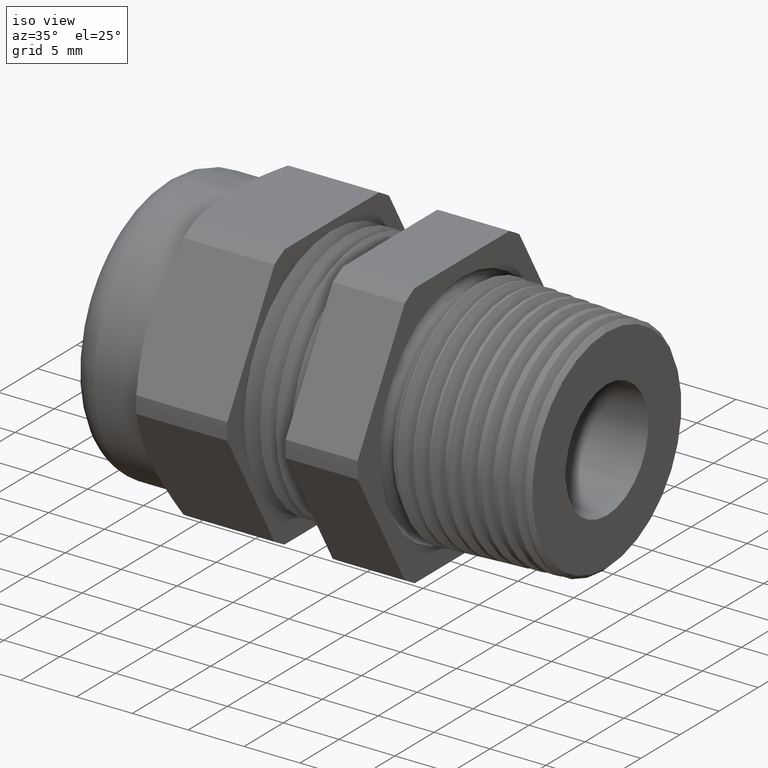
[diagram: clean part render]
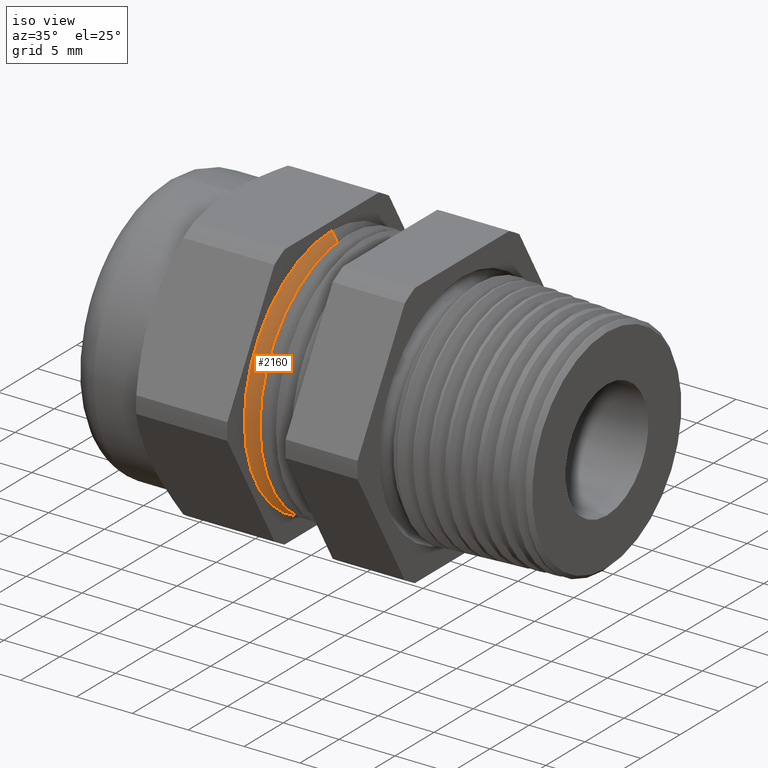
[diagram: same view with one face highlighted and labeled with its STEP entity id]
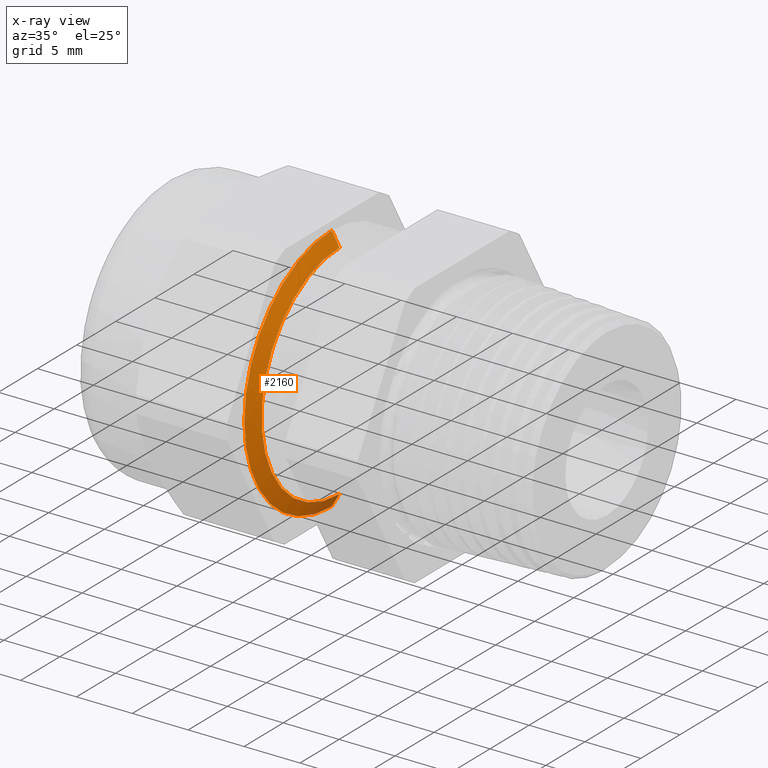
[diagram: x-ray of the same camera — body ghosted, the highlighted face saturated]
A machine part, iso view. The second image highlights one B-rep face of the part: STEP entity #2160.
The next image is the same camera in x-ray: the body ghosted, the highlighted face saturated — about 5% of this face is hidden behind the body in this view.
In plain terms, the highlighted conical surface has half-angle 60 deg.
Its self-contained STEP definition (entity closure, byte-faithful):
#879 = DIRECTION ( 'NONE',  ( -0.4999999999999943400, 1.060575238724910900E-016, -0.8660254037844418200 ) ) ;
#880 = VECTOR ( 'NONE', #879, 39.37007874015748100 ) ;
#881 = CARTESIAN_POINT ( 'NONE',  ( -0.4591666666666665600, 5.387221269449206900E-017, -0.4399000000000000100 ) ) ;
#882 = LINE ( 'NONE', #881, #880 ) ;
#889 = CARTESIAN_POINT ( 'NONE',  ( -0.4591666666666665600, 0.0000000000000000000, 0.4399000000000000100 ) ) ;
#890 = DIRECTION ( 'NONE',  ( -0.4999999999999943400, 0.0000000000000000000, 0.8660254037844418200 ) ) ;
#891 = VECTOR ( 'NONE', #890, 39.37007874015748100 ) ;
#892 = CARTESIAN_POINT ( 'NONE',  ( -0.4591666666666665600, 0.0000000000000000000, 0.4399000000000000100 ) ) ;
#893 = LINE ( 'NONE', #892, #891 ) ;
#894 = CARTESIAN_POINT ( 'NONE',  ( -0.4591666666666665600, 5.387221269449206900E-017, -0.4399000000000000100 ) ) ;
#1981 = VERTEX_POINT ( 'NONE', #3275 ) ;
#1983 = VERTEX_POINT ( 'NONE', #3274 ) ;
#2027 = EDGE_CURVE ( 'NONE', #2563, #2559, #3333, .T. ) ;
#2126 = EDGE_CURVE ( 'NONE', #1981, #1983, #3465, .T. ) ;
#2141 = ORIENTED_EDGE ( 'NONE', *, *, #2027, .T. ) ;
#2154 = ORIENTED_EDGE ( 'NONE', *, *, #2567, .F. ) ;
#2155 = ORIENTED_EDGE ( 'NONE', *, *, #2126, .F. ) ;
#2158 = ORIENTED_EDGE ( 'NONE', *, *, #2561, .T. ) ;
#2160 = ADVANCED_FACE ( 'NONE', ( #3543 ), #3542, .T. ) ;
#2161 = EDGE_LOOP ( 'NONE', ( #2154, #2155, #2158, #2141 ) ) ;
#2559 = VERTEX_POINT ( 'NONE', #894 ) ;
#2561 = EDGE_CURVE ( 'NONE', #1981, #2563, #893, .T. ) ;
#2563 = VERTEX_POINT ( 'NONE', #889 ) ;
#2567 = EDGE_CURVE ( 'NONE', #1983, #2559, #882, .T. ) ;
#3274 = CARTESIAN_POINT ( 'NONE',  ( -0.4316666794885449800, 0.0000000000000000000, -0.3922686249999999800 ) ) ;
#3275 = CARTESIAN_POINT ( 'NONE',  ( -0.4316666794885449800, 5.095563214785520700E-017, 0.3922686249999999800 ) ) ;
#3329 = DIRECTION ( 'NONE',  ( 0.0000000000000000000, 0.0000000000000000000, -1.000000000000000000 ) ) ;
#3330 = DIRECTION ( 'NONE',  ( 1.000000000000000000, 0.0000000000000000000, 0.0000000000000000000 ) ) ;
#3331 = CARTESIAN_POINT ( 'NONE',  ( -0.4591666666666665600, 0.0000000000000000000, 0.0000000000000000000 ) ) ;
#3332 = AXIS2_PLACEMENT_3D ( 'NONE', #3331, #3330, #3329 ) ;
#3333 = CIRCLE ( 'NONE', #3332, 0.4399000000000000100 ) ;
#3462 = DIRECTION ( 'NONE',  ( 0.0000000000000000000, 0.0000000000000000000, -1.000000000000000000 ) ) ;
#3463 = DIRECTION ( 'NONE',  ( 1.000000000000000000, 0.0000000000000000000, 0.0000000000000000000 ) ) ;
#3464 = AXIS2_PLACEMENT_3D ( 'NONE', #3469, #3463, #3462 ) ;
#3465 = CIRCLE ( 'NONE', #3464, 0.3922686249999999800 ) ;
#3469 = CARTESIAN_POINT ( 'NONE',  ( -0.4316666794885449800, 0.0000000000000000000, 0.0000000000000000000 ) ) ;
#3538 = DIRECTION ( 'NONE',  ( 0.0000000000000000000, 0.0000000000000000000, 1.000000000000000000 ) ) ;
#3539 = DIRECTION ( 'NONE',  ( -1.000000000000000000, 0.0000000000000000000, 0.0000000000000000000 ) ) ;
#3540 = CARTESIAN_POINT ( 'NONE',  ( -0.4591666666666665600, 0.0000000000000000000, 0.0000000000000000000 ) ) ;
#3541 = AXIS2_PLACEMENT_3D ( 'NONE', #3540, #3539, #3538 ) ;
#3542 = CONICAL_SURFACE ( 'NONE', #3541, 0.4399000000000000100, 1.047197551196604300 ) ;
#3543 = FACE_OUTER_BOUND ( 'NONE', #2161, .T. ) ;